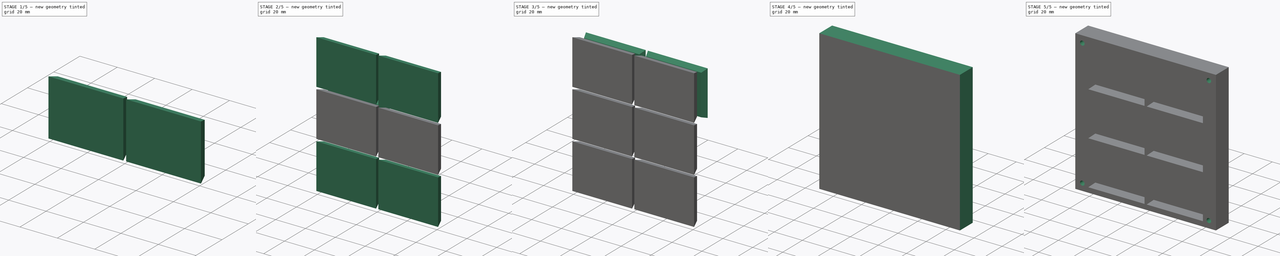
[diagram: build sequence overview — one tinted view per stage of 5, left to right]
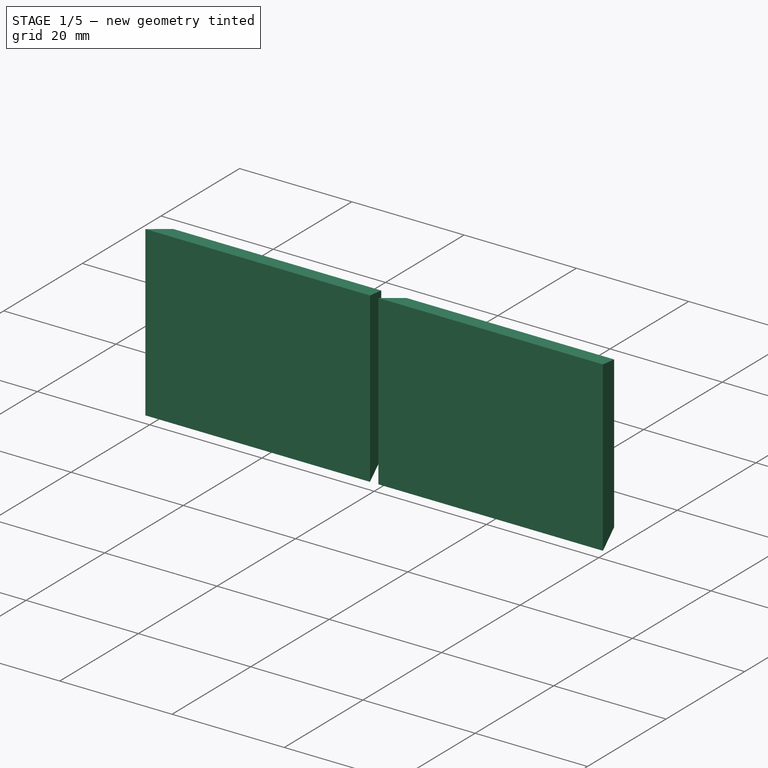
[diagram: stage 1 of 5 — iso view after this stage's code; geometry added in this stage tinted green]
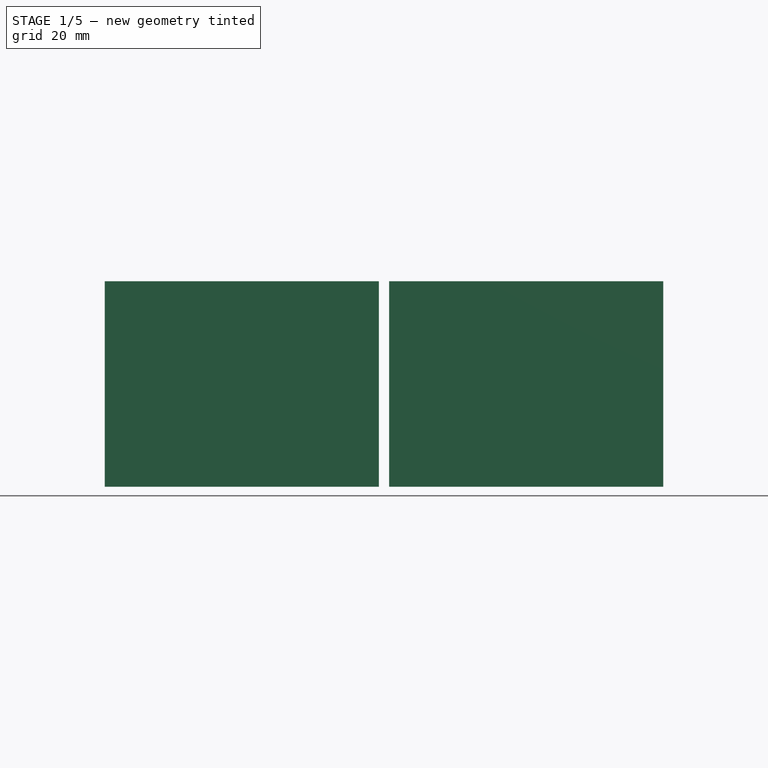
[diagram: stage 1 of 5 — front view after this stage's code; geometry added in this stage tinted green]
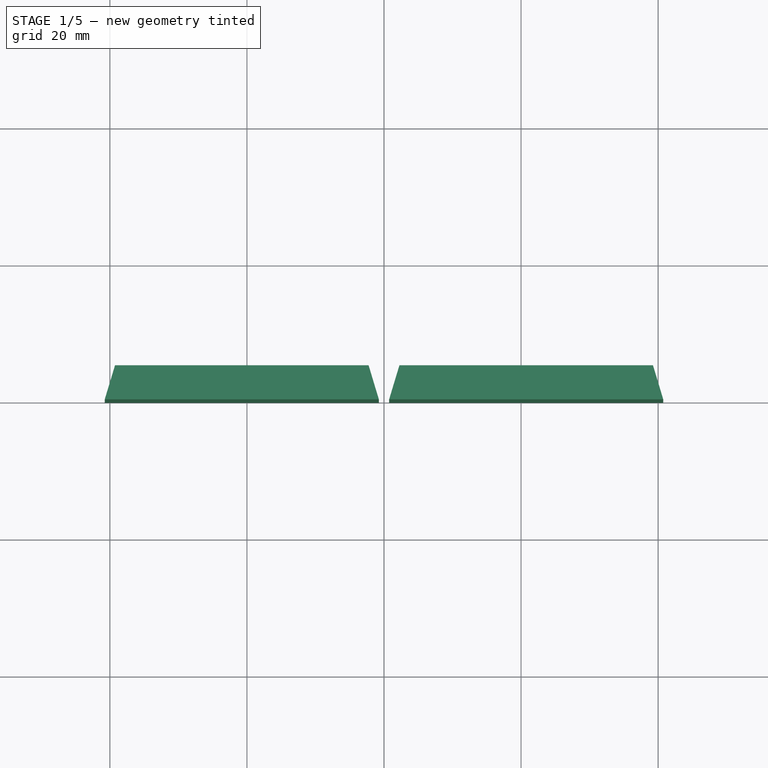
[diagram: stage 1 of 5 — top view after this stage's code; geometry added in this stage tinted green]
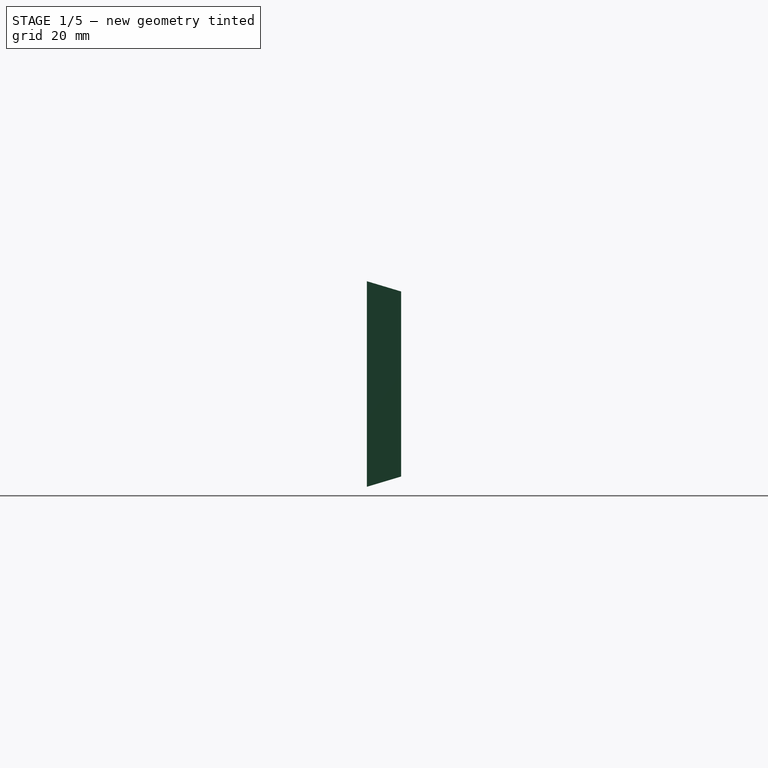
[diagram: stage 1 of 5 — right view after this stage's code; geometry added in this stage tinted green]
FCSTD DOCUMENT  (FreeCAD 0.15R4671 (Git))
Label: LoosePartFeeder
License: CreativeCommons Attribution-ShareAlike
LicenseURL: http://creativecommons.org/licenses/by-sa/4.0/
objects: Part::Mirroring×5, Part::MultiFuse×4, Part::Wedge×3, Part::Cut×2, Sketcher::SketchObject×2, PartDesign::Pocket×2, Part::Box×1, Part::Feature×1
note: 22 computed .brp shape members not serialized (recipe doc carries the construction recipe); baked Part::Feature solids carry a one-line shape summary decoded from their .brp

FEATURE [Part::Wedge] Wedge002  label="Wedge"
  Placement = pos=(0.75,0,-13) rot=(0,0,1;0rad)
  X2max = 38.5
  X2min = 1.5
  Xmax = 40
  Xmin = 0
  Ymax = 5
  Ymin = 0
  Z2max = 28.5
  Z2min = 1.5
  Zmax = 30
  Zmin = 0
FEATURE [Part::Mirroring] Part__Mirroring002  label="Wedge (Mirror #3)"
  Base = (0,0,0)
  Normal = (1,0,0)
  Source = -> Wedge002
FEATURE [Part::MultiFuse] Fusion002
  Shapes = -> [Wedge002,Part__Mirroring002]
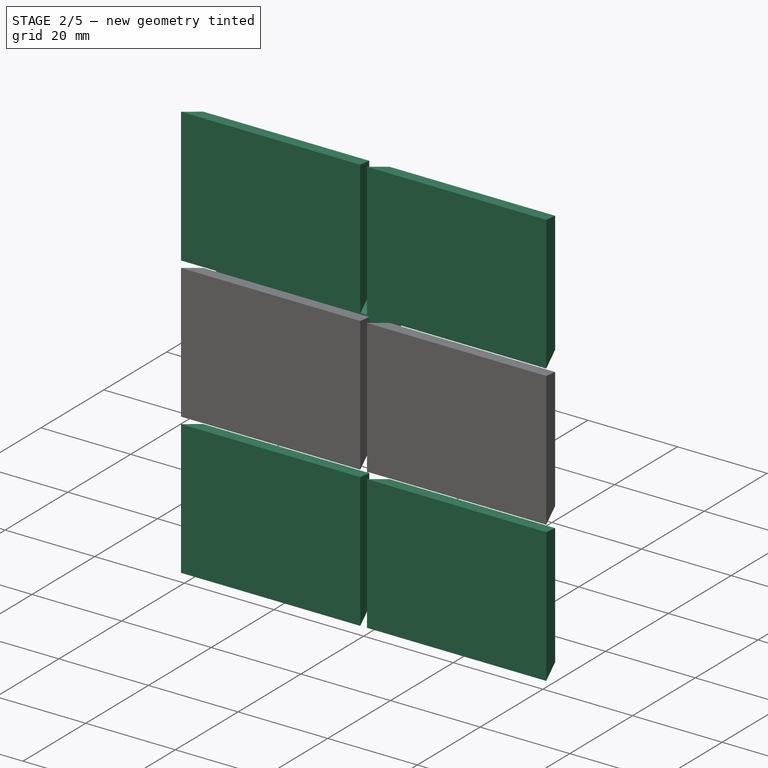
[diagram: stage 2 of 5 — iso view after this stage's code; geometry added in this stage tinted green]
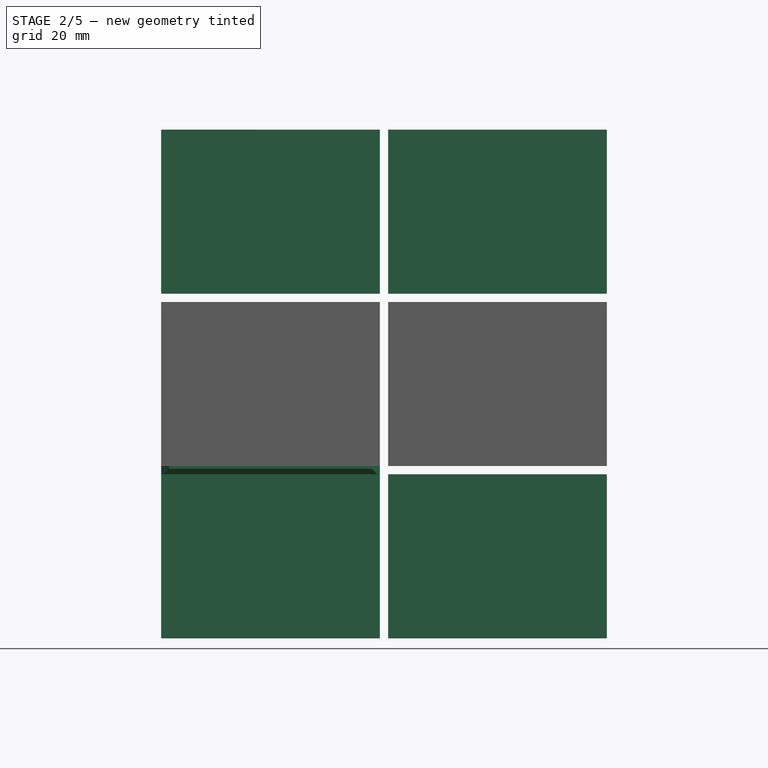
[diagram: stage 2 of 5 — front view after this stage's code; geometry added in this stage tinted green]
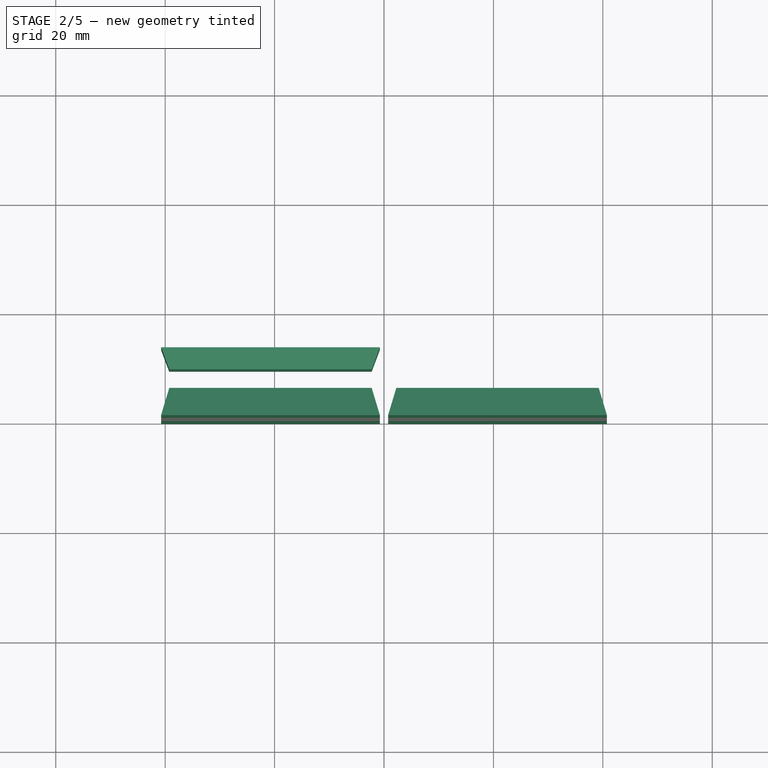
[diagram: stage 2 of 5 — top view after this stage's code; geometry added in this stage tinted green]
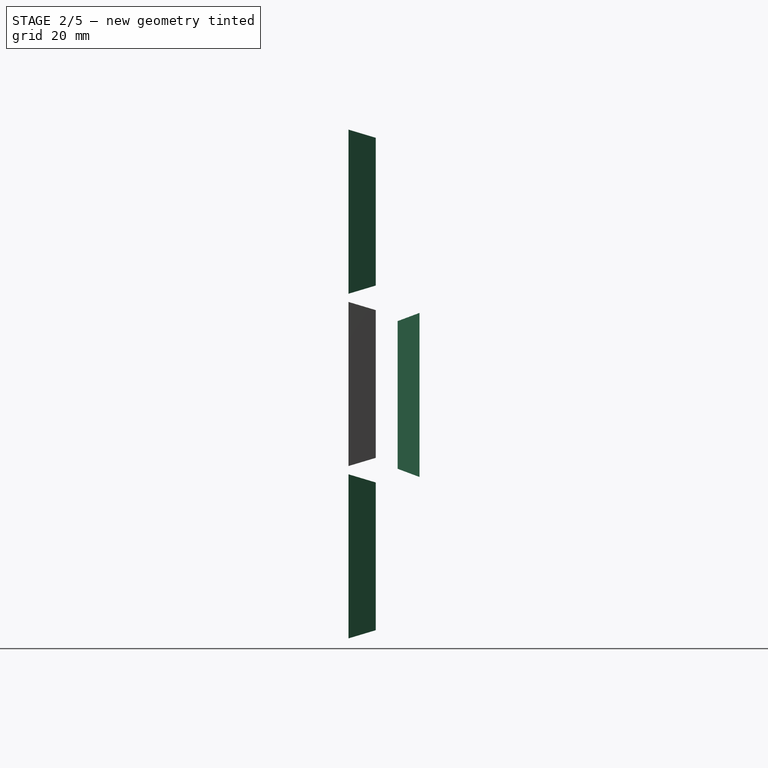
[diagram: stage 2 of 5 — right view after this stage's code; geometry added in this stage tinted green]
FEATURE [Part::Wedge] Wedge001
  Placement = pos=(-20.75,9,0) rot=(0,0,1;0rad)
  X2max = 20
  X2min = -20
  Xmax = 18.5
  Xmin = -18.5
  Ymax = 4
  Ymin = 0
  Z2max = 15
  Z2min = -15
  Zmax = 13.5
  Zmin = -13.5
FEATURE [Part::Mirroring] Part__Mirroring003  label="Fusion002 (Mirror #4)"
  Base = (0,0,0)
  Normal = (0,0,1)
  Placement = pos=(0,0,-27.5) rot=(0,0,1;0rad)
  Source = -> Fusion002
FEATURE [Part::Mirroring] Part__Mirroring004  label="Fusion002 (Mirror #5)"
  Base = (0,0,0)
  Normal = (0,0,1)
  Placement = pos=(0,0,35.5) rot=(0,0,1;0rad)
  Source = -> Fusion002
FEATURE [Part::MultiFuse] Fusion003
  Shapes = -> [Fusion002,Part__Mirroring004,Part__Mirroring003]
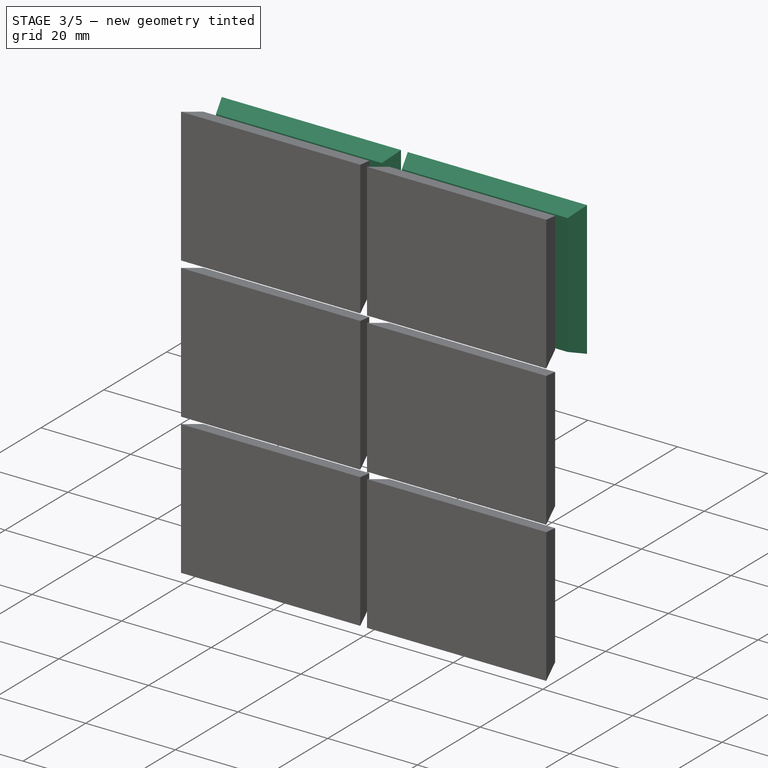
[diagram: stage 3 of 5 — iso view after this stage's code; geometry added in this stage tinted green]
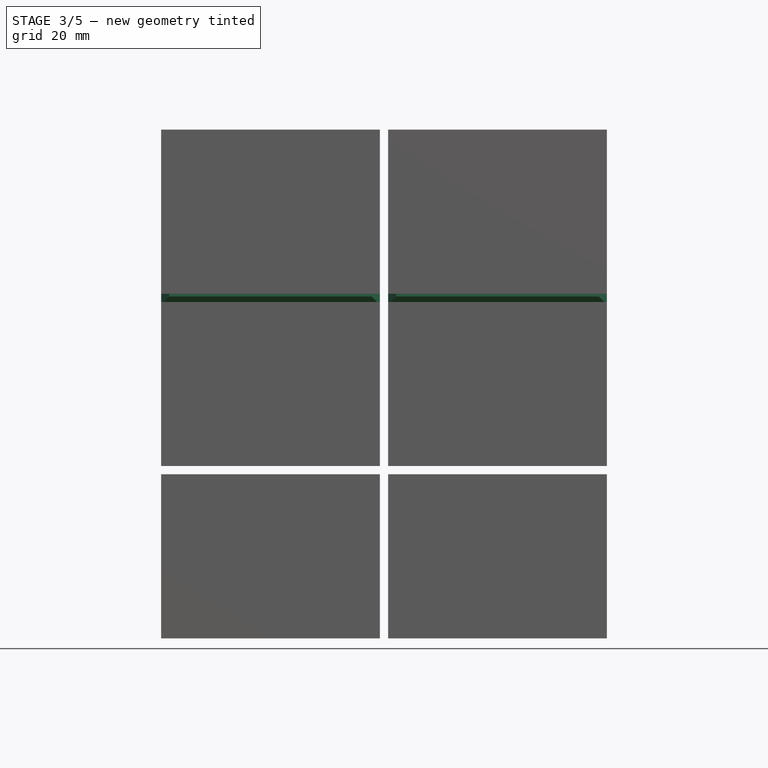
[diagram: stage 3 of 5 — front view after this stage's code; geometry added in this stage tinted green]
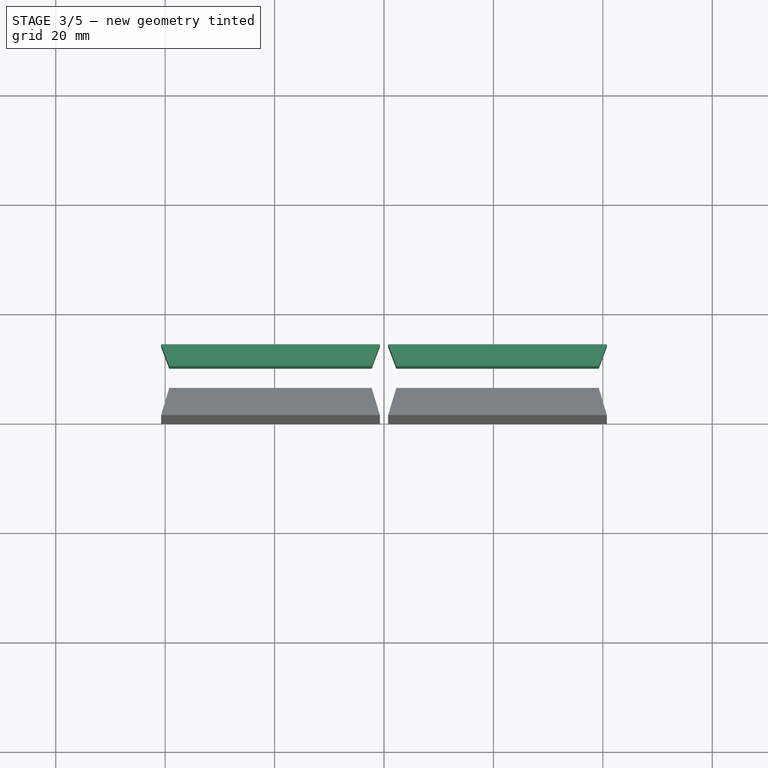
[diagram: stage 3 of 5 — top view after this stage's code; geometry added in this stage tinted green]
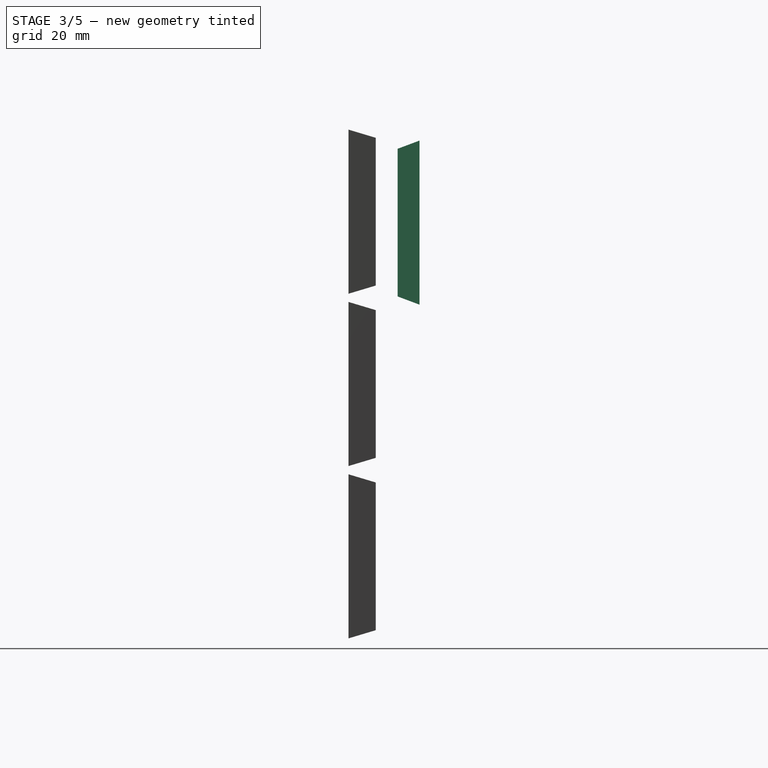
[diagram: stage 3 of 5 — right view after this stage's code; geometry added in this stage tinted green]
FEATURE [Part::Wedge] Wedge
  Placement = pos=(20.75,9,0) rot=(0,0,1;0rad)
  X2max = 20
  X2min = -20
  Xmax = 18.5
  Xmin = -18.5
  Ymax = 4
  Ymin = 0
  Z2max = 15
  Z2min = -15
  Zmax = 13.5
  Zmin = -13.5
FEATURE [Part::MultiFuse] Fusion
  Shapes = -> [Wedge001,Wedge]
FEATURE [Part::Mirroring] Part__Mirroring001  label="Fusion (Mirror #2)"
  Base = (0,0,0)
  Normal = (0,0,1)
  Placement = pos=(0,0,31.5) rot=(0,0,1;0rad)
  Source = -> Fusion
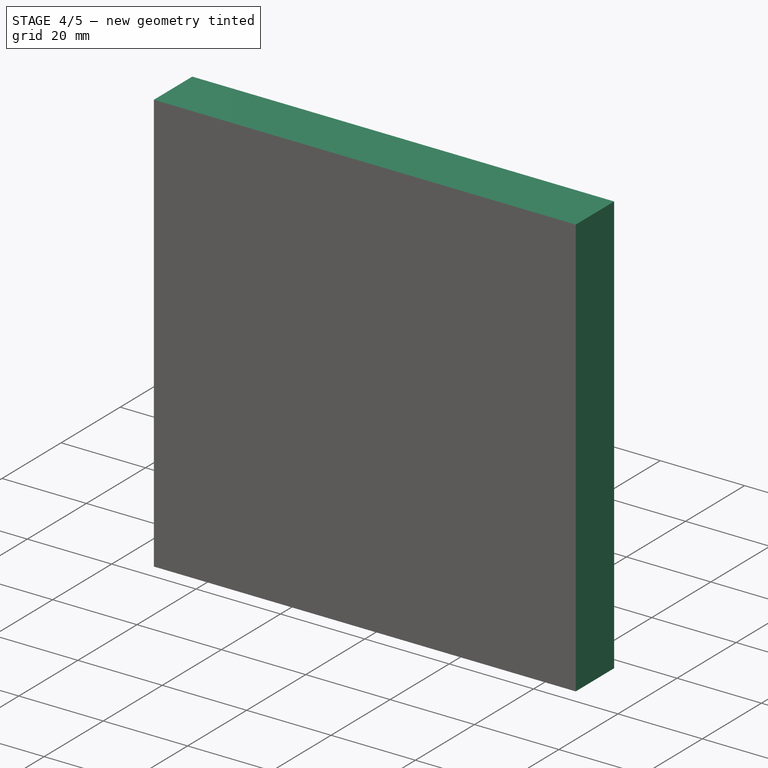
[diagram: stage 4 of 5 — iso view after this stage's code; geometry added in this stage tinted green]
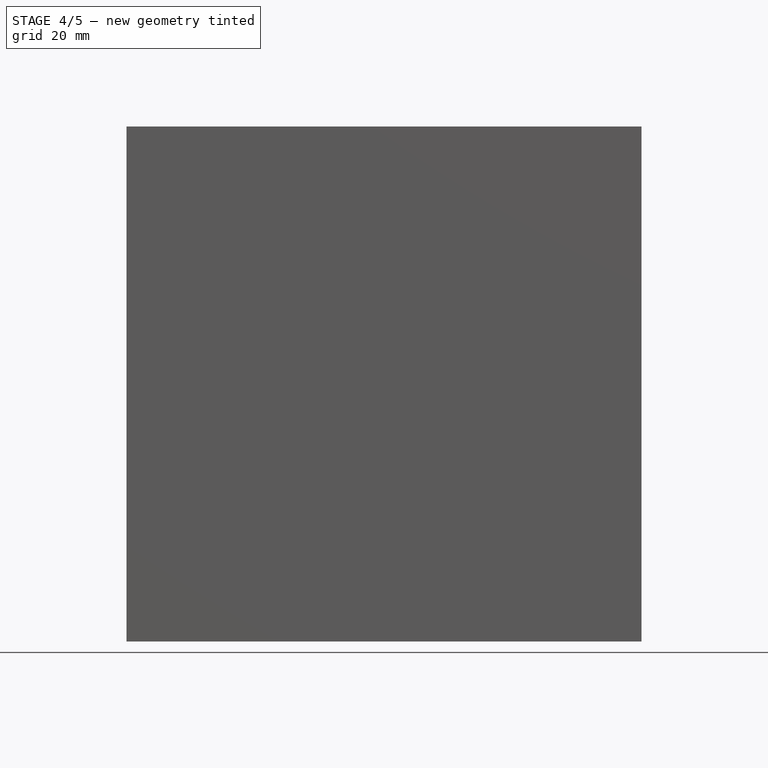
[diagram: stage 4 of 5 — front view after this stage's code; geometry added in this stage tinted green]
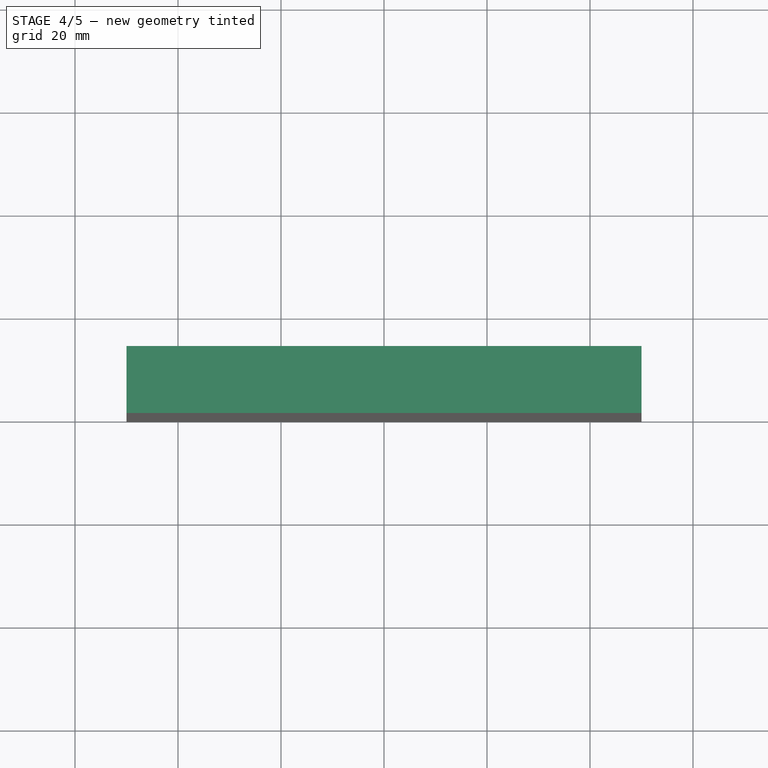
[diagram: stage 4 of 5 — top view after this stage's code; geometry added in this stage tinted green]
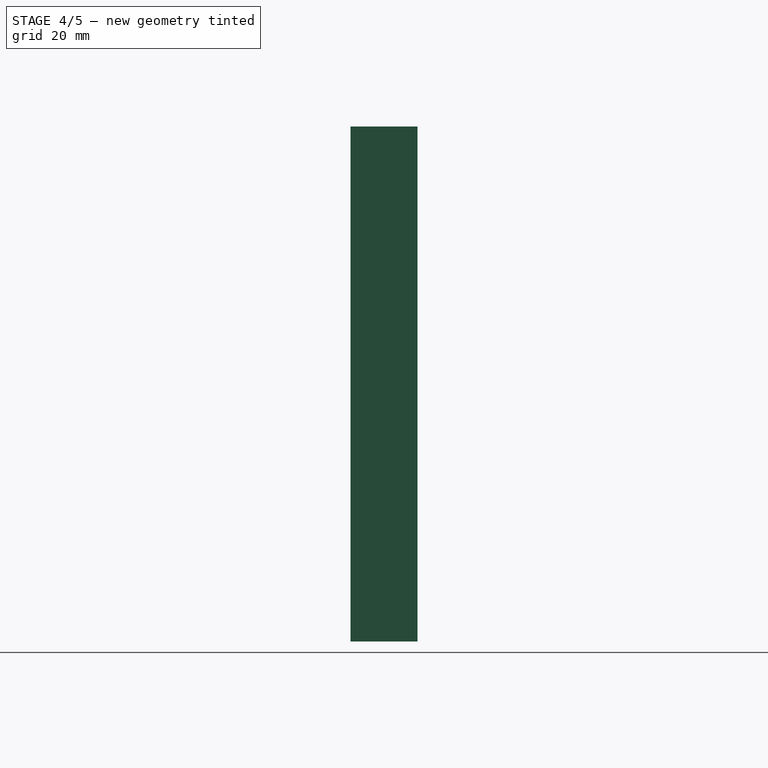
[diagram: stage 4 of 5 — right view after this stage's code; geometry added in this stage tinted green]
FEATURE [Part::Box] Box  label="Cube"
  Height = 100
  Length = 100
  Placement = pos=(-50,0,-48) rot=(0,0,1;0rad)
  Width = 13
FEATURE [Part::Mirroring] Part__Mirroring  label="Fusion (Mirror #1)"
  Base = (0,0,0)
  Normal = (0,0,1)
  Placement = pos=(0,0,-31.5) rot=(0,0,1;0rad)
  Source = -> Fusion
FEATURE [Part::MultiFuse] Fusion001
  Placement = pos=(0,0,2) rot=(0,0,1;0rad)
  Shapes = -> [Fusion,Part__Mirroring001,Part__Mirroring]
FEATURE [Part::Cut] Cut
  Base = -> Box
  Tool = -> Fusion001
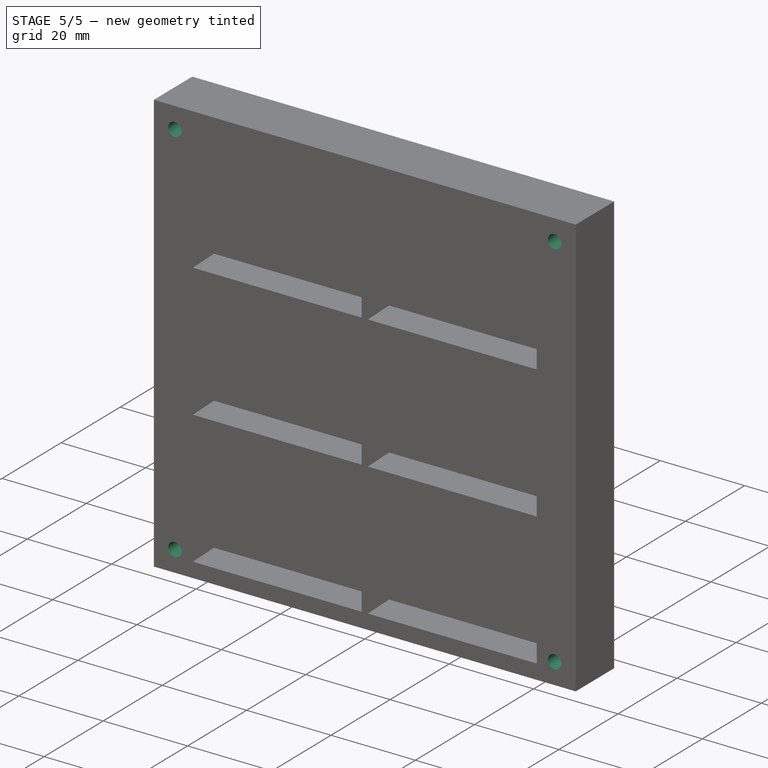
[diagram: stage 5 of 5 — iso view after this stage's code; geometry added in this stage tinted green]
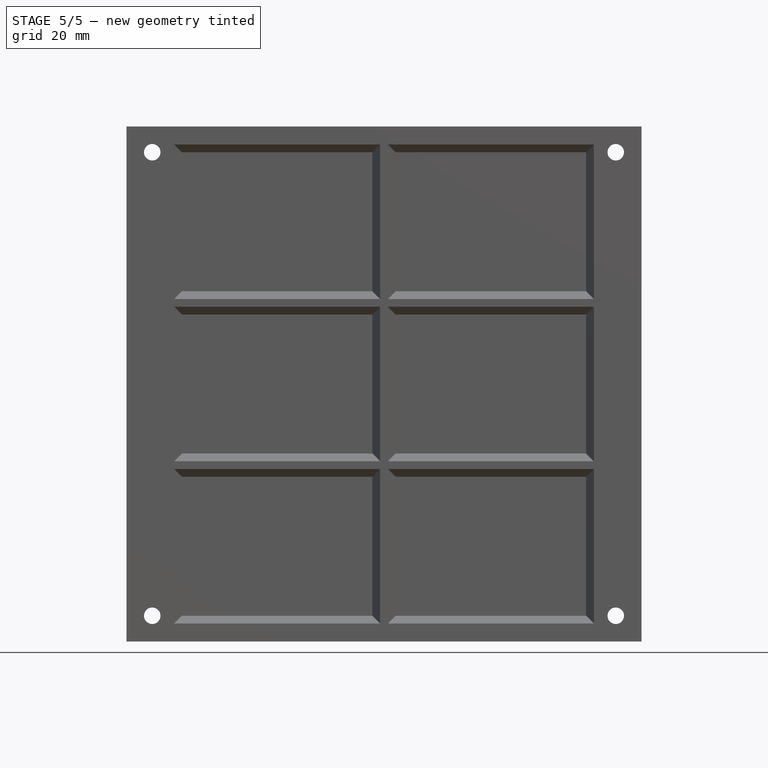
[diagram: stage 5 of 5 — front view after this stage's code; geometry added in this stage tinted green]
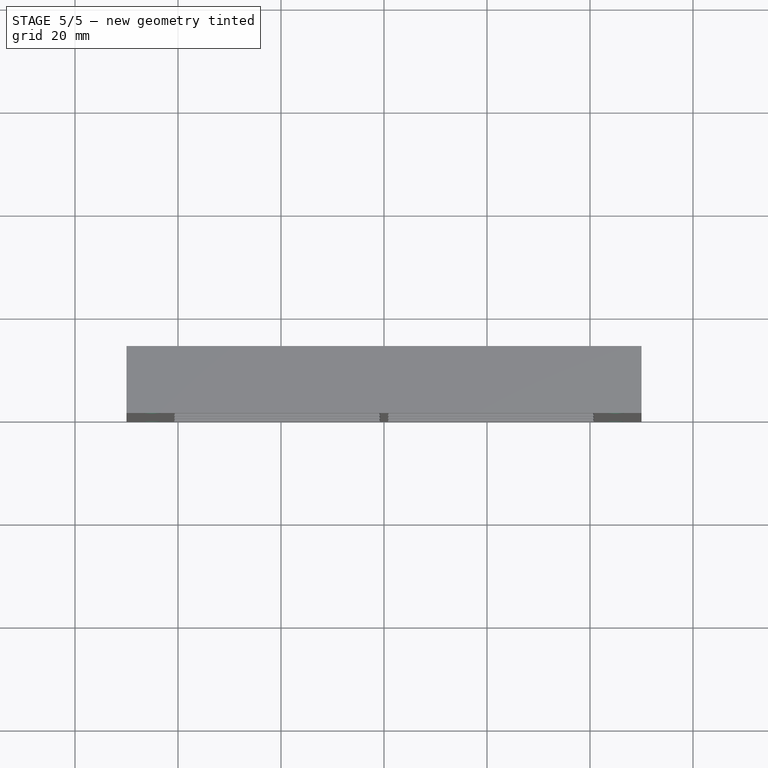
[diagram: stage 5 of 5 — top view after this stage's code; geometry added in this stage tinted green]
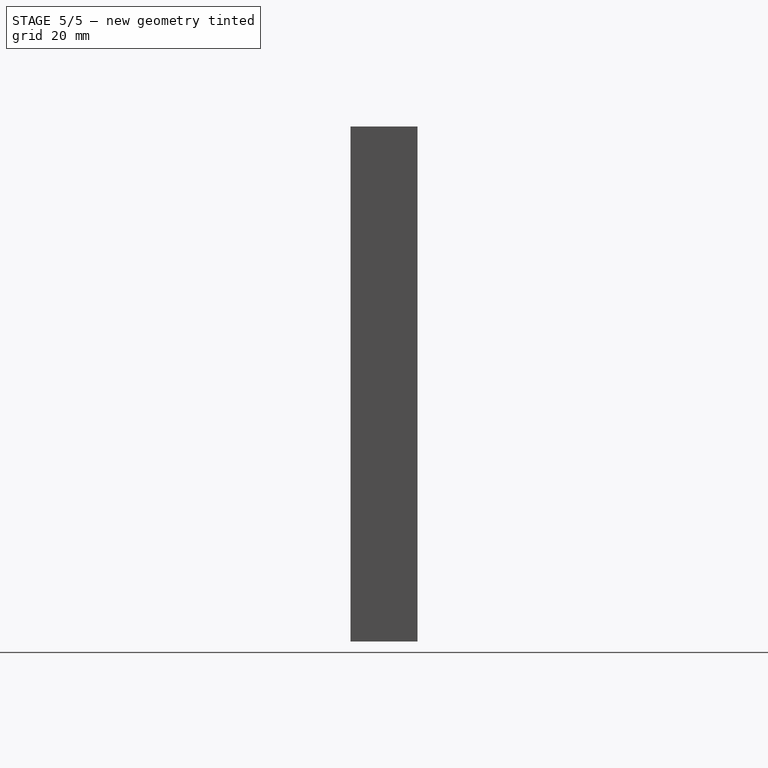
[diagram: stage 5 of 5 — right view after this stage's code; geometry added in this stage tinted green]
FEATURE [Sketcher::SketchObject] Sketch001
  ExternalGeometry = -> [Cut]
  Placement = pos=(0,13,0) rot=(0,0.707107,0.707107;3.14159rad)
  Support = -> Cut [Face4]
  sketch-geometry (11):
    g0: LineSegment [constr] StartX=-45 StartY=47 StartZ=0 EndX=45 EndY=47 EndZ=0
    g1: LineSegment [constr] StartX=45 StartY=47 StartZ=0 EndX=45 EndY=-43 EndZ=0
    g2: LineSegment [constr] StartX=45 StartY=-43 StartZ=0 EndX=-45 EndY=-43 EndZ=0
    g3: LineSegment [constr] StartX=-45 StartY=-43 StartZ=0 EndX=-45 EndY=47 EndZ=0
    g4: LineSegment [constr] StartX=-50 StartY=52 StartZ=0 EndX=-45 EndY=47 EndZ=0
    g5: LineSegment [constr] StartX=-50 StartY=-48 StartZ=0 EndX=-45 EndY=-43 EndZ=0
    g6: LineSegment [constr] StartX=50 StartY=52 StartZ=0 EndX=45 EndY=47 EndZ=0
    g7: Circle CenterX=-45 CenterY=47 CenterZ=0 NormalX=0 NormalY=0 NormalZ=1 Radius=1.6
    g8: Circle CenterX=-45 CenterY=-43 CenterZ=0 NormalX=0 NormalY=0 NormalZ=1 Radius=1.6
    g9: Circle CenterX=45 CenterY=-43 CenterZ=0 NormalX=0 NormalY=0 NormalZ=1 Radius=1.6
    g10: Circle CenterX=45 CenterY=47 CenterZ=0 NormalX=0 NormalY=0 NormalZ=1 Radius=1.6
  constraints (26):
    c: Coincident(g0,g1)
    c: Coincident(g1,g2)
    c: Coincident(g2,g3)
    c: Coincident(g3,g0)
    c: Horizontal(g0)
    c: Horizontal(g2)
    c: Vertical(g1)
    c: Vertical(g3)
    c: Equal(g1,g2)
    c: DistanceY(g1) = -90
    c: Coincident(g4,g-3)
    c: Coincident(g0,g4)
    c: Coincident(g5,g-3)
    c: Coincident(g5,g2)
    c: Coincident(g6,g-4)
    c: Coincident(g6,g0)
    c: Equal(g6,g4)
    c: Equal(g4,g5)
    c: Coincident(g7,g0)
    c: Coincident(g8,g2)
    c: Coincident(g9,g1)
    c: Coincident(g10,g0)
    c: Equal(g10,g9)
    c: Equal(g9,g8)
    c: Equal(g8,g7)
    c: Radius(g10) = 1.6
FEATURE [PartDesign::Pocket] Pocket
  Length = 5
  Sketch = -> Sketch001
  Type = 1
FEATURE [Sketcher::SketchObject] Sketch002
  ExternalGeometry = -> [Cut]
  Placement = pos=(0,13,0) rot=(0,0.707107,0.707107;3.14159rad)
  Support = -> Pocket [Face4]
  sketch-geometry (11):
    g0: LineSegment [constr] StartX=-45 StartY=47 StartZ=0 EndX=45 EndY=47 EndZ=0
    g1: LineSegment [constr] StartX=45 StartY=47 StartZ=0 EndX=45 EndY=-43 EndZ=0
    g2: LineSegment [constr] StartX=45 StartY=-43 StartZ=0 EndX=-45 EndY=-43 EndZ=0
    g3: LineSegment [constr] StartX=-45 StartY=-43 StartZ=0 EndX=-45 EndY=47 EndZ=0
    g4: LineSegment [constr] StartX=-50 StartY=52 StartZ=0 EndX=-45 EndY=47 EndZ=0
    g5: LineSegment [constr] StartX=-50 StartY=-48 StartZ=0 EndX=-45 EndY=-43 EndZ=0
    g6: LineSegment [constr] StartX=50 StartY=52 StartZ=0 EndX=45 EndY=47 EndZ=0
    g7: Circle CenterX=-45 CenterY=47 CenterZ=0 NormalX=0 NormalY=0 NormalZ=1 Radius=3
    g8: Circle CenterX=-45 CenterY=-43 CenterZ=0 NormalX=0 NormalY=0 NormalZ=1 Radius=3
    g9: Circle CenterX=45 CenterY=-43 CenterZ=0 NormalX=0 NormalY=0 NormalZ=1 Radius=3
    g10: Circle CenterX=45 CenterY=47 CenterZ=0 NormalX=0 NormalY=0 NormalZ=1 Radius=3
  constraints (26):
    c: Coincident(g0,g1)
    c: Coincident(g1,g2)
    c: Coincident(g2,g3)
    c: Coincident(g3,g0)
    c: Horizontal(g0)
    c: Horizontal(g2)
    c: Vertical(g1)
    c: Vertical(g3)
    c: Equal(g1,g2)
    c: DistanceY(g1) = -90
    c: Coincident(g4,g-3)
    c: Coincident(g0,g4)
    c: Coincident(g5,g-3)
    c: Coincident(g5,g2)
    c: Coincident(g6,g-4)
    c: Coincident(g6,g0)
    c: Equal(g6,g4)
    c: Equal(g4,g5)
    c: Coincident(g7,g0)
    c: Coincident(g8,g2)
    c: Coincident(g9,g1)
    c: Coincident(g10,g0)
    c: Equal(g10,g9)
    c: Equal(g9,g8)
    c: Equal(g8,g7)
    c: Radius(g10) = 3
FEATURE [PartDesign::Pocket] Pocket001
  Length = 8
  Sketch = -> Sketch002
  Type = 0
FEATURE [Part::Cut] Cut001  label="tray"
  Base = -> Pocket001
  Tool = -> Fusion003
FEATURE [Part::Feature] Cut002  label="tray"
  Placement = pos=(0,0,0) rot=(1,0,0;1.5708rad)
  shape: bbox 100 x 100 x 13 mm, 78 faces (baked)
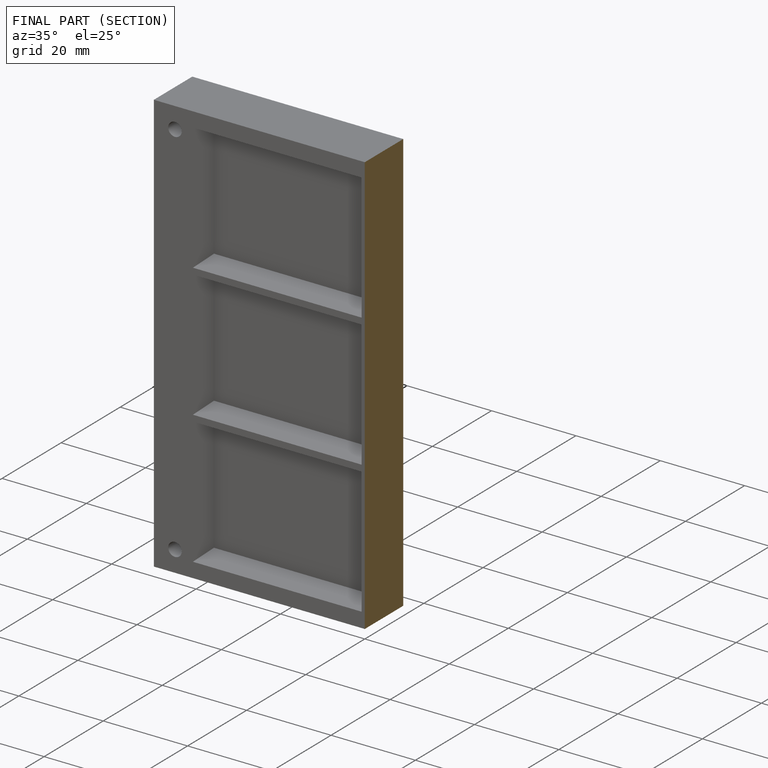
[diagram: finished part — half-section view (interior)]
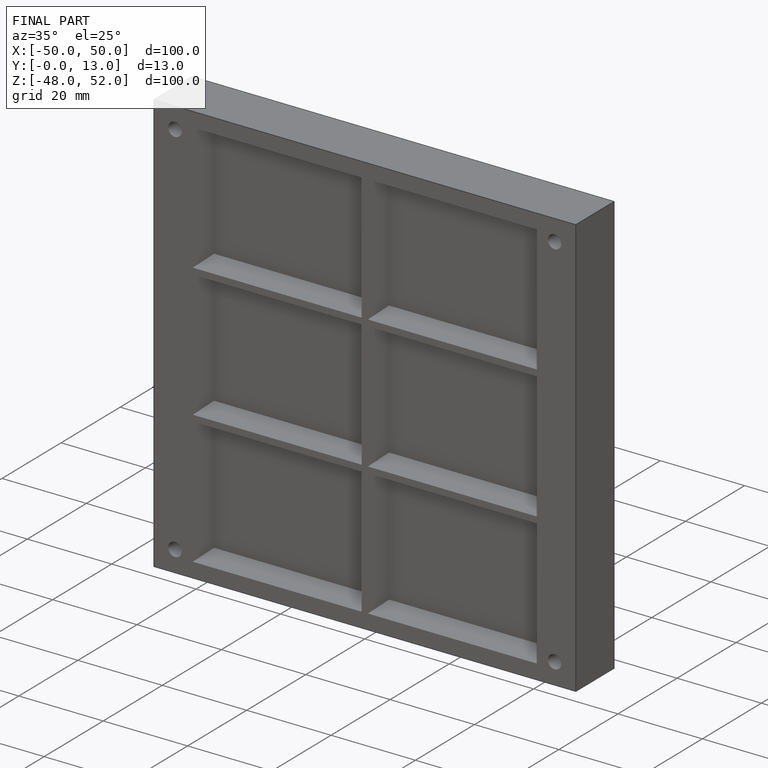
[diagram: finished part — iso view with bounding-box wireframe]
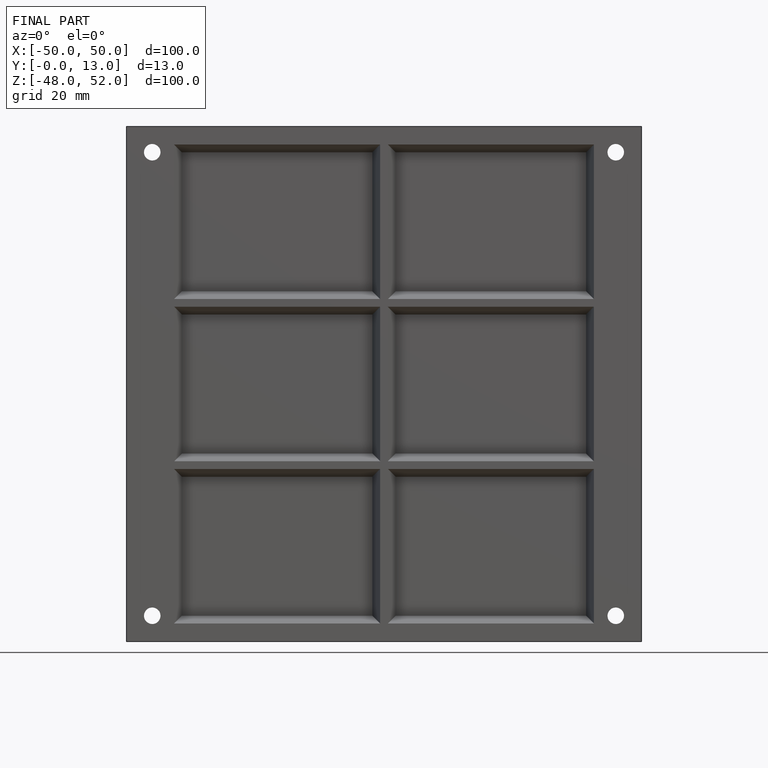
[diagram: finished part — front view with bounding-box wireframe]
